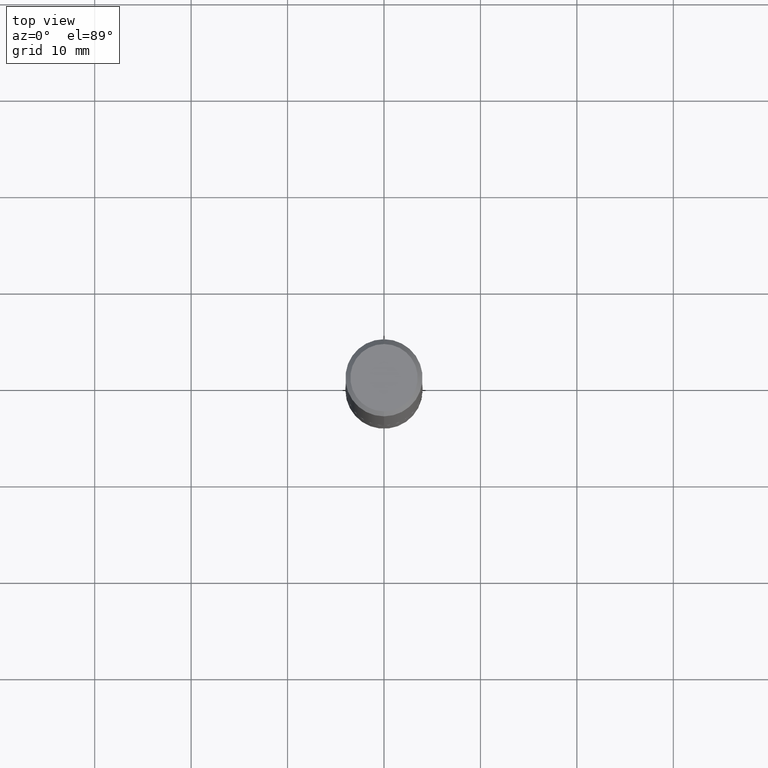
[diagram: clean part render]
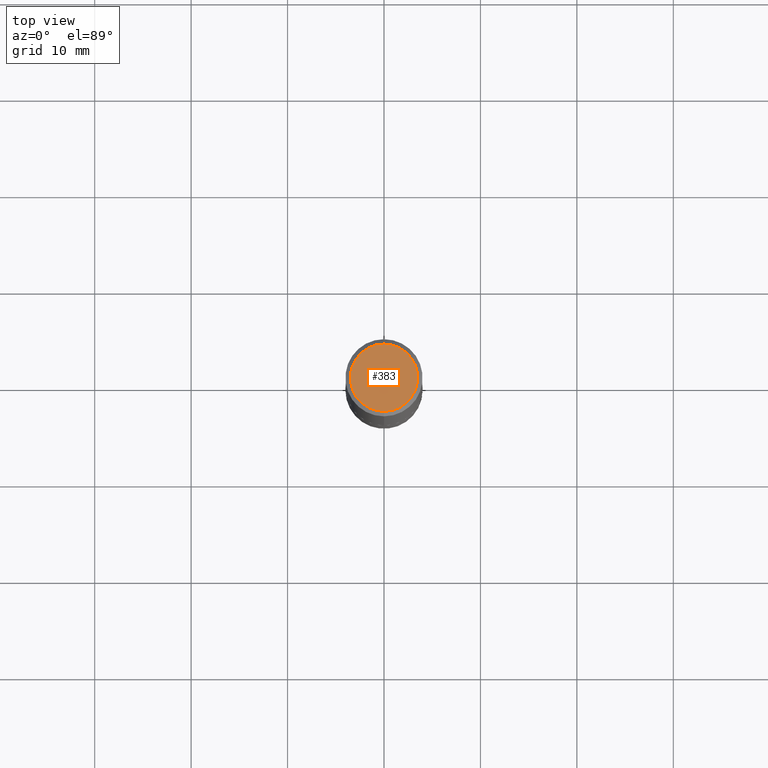
[diagram: same view with one face highlighted and labeled with its STEP entity id]
A machine part, top view. The second image highlights one B-rep face of the part: STEP entity #383.
In plain terms, the highlighted planar face has unit normal (0, -0, -1).
Its self-contained STEP definition (entity closure, byte-faithful):
#51 = EDGE_CURVE ( 'NONE', #167, #417, #318, .T. ) ;
#116 = CARTESIAN_POINT ( 'NONE',  ( 9.601573681818600950E-16, 0.1374999999999997891, -3.798218808232814543E-16 ) ) ;
#130 = AXIS2_PLACEMENT_3D ( 'NONE', #244, #363, #298 ) ;
#137 = AXIS2_PLACEMENT_3D ( 'NONE', #213, #313, #340 ) ;
#146 = FACE_OUTER_BOUND ( 'NONE', #289, .T. ) ;
#167 = VERTEX_POINT ( 'NONE', #406 ) ;
#170 = AXIS2_PLACEMENT_3D ( 'NONE', #116, #345, #337 ) ;
#171 = ORIENTED_EDGE ( 'NONE', *, *, #51, .T. ) ;
#213 = CARTESIAN_POINT ( 'NONE',  ( -4.907620139431751550E-45, 7.009885081384458012E-31, 2.007265675341379917E-16 ) ) ;
#216 = EDGE_CURVE ( 'NONE', #417, #167, #311, .T. ) ;
#244 = CARTESIAN_POINT ( 'NONE',  ( -4.907620139431751550E-45, 7.009885081384458012E-31, 2.007265675341379917E-16 ) ) ;
#268 = PLANE ( 'NONE',  #170 ) ;
#289 = EDGE_LOOP ( 'NONE', ( #388, #171 ) ) ;
#298 = DIRECTION ( 'NONE',  ( -6.982962677686265922E-15, -1.000000000000000000, 3.492255742475281487E-15 ) ) ;
#311 = CIRCLE ( 'NONE', #137, 0.1374999999999997891 ) ;
#313 = DIRECTION ( 'NONE',  ( -2.444928043019069804E-29, 3.492255742475281487E-15, 1.000000000000000000 ) ) ;
#318 = CIRCLE ( 'NONE', #130, 0.1374999999999997891 ) ;
#320 = CARTESIAN_POINT ( 'NONE',  ( 1.029986994958723788E-15, 0.1374999999999997891, -2.794585970562124091E-16 ) ) ;
#337 = DIRECTION ( 'NONE',  ( 6.982962677686265922E-15, 1.000000000000000000, -3.492255742475281487E-15 ) ) ;
#340 = DIRECTION ( 'NONE',  ( -6.982962677686265922E-15, -1.000000000000000000, 3.492255742475281487E-15 ) ) ;
#345 = DIRECTION ( 'NONE',  ( 2.444928043019069243E-29, -3.492255742475281487E-15, -1.000000000000000000 ) ) ;
#363 = DIRECTION ( 'NONE',  ( -2.444928043019069804E-29, 3.492255742475281487E-15, 1.000000000000000000 ) ) ;
#383 = ADVANCED_FACE ( 'NONE', ( #146 ), #268, .F. ) ;
#388 = ORIENTED_EDGE ( 'NONE', *, *, #216, .T. ) ;
#406 = CARTESIAN_POINT ( 'NONE',  ( -1.011923454671300053E-15, -0.1374999999999997891, 6.809117321244884418E-16 ) ) ;
#417 = VERTEX_POINT ( 'NONE', #320 ) ;